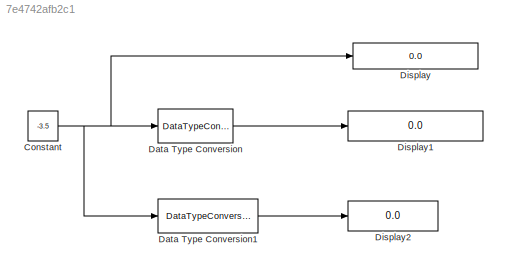
MODEL slx_7e4742afb2c1
KIND model
CONFIG AbsTol = auto
CONFIG EnableMultiTasking = off
CONFIG FixedStep = auto
CONFIG MaxStep = auto
CONFIG MinStep = auto
CONFIG RelTol = 1e-3
CONFIG SampleTimeConstraint = Unconstrained
CONFIG Solver = VariableStepAuto
CONFIG SolverName = VariableStepAuto
CONFIG StartTime = 0.0
CONFIG StopTime = 10.0
BLOCK [Constant] Constant
  AttributesFormatString = %<OutDataTypeStr>
  OutDataTypeStr = fixdt(1,8,3, 'DataTypeOverride', 'Off')
  SampleTime = -1
  Value = -3.5
BLOCK [DataTypeConversion] Data Type Conversion
  AttributesFormatString = %<ConvertRealWorld>\n%<OutDataTypeStr>
  OutDataTypeStr = fixdt(1,16,8)
  RndMeth = Floor
  SaturateOnIntegerOverflow = off
BLOCK [DataTypeConversion] Data Type Conversion1
  AttributesFormatString = %<OutDataTypeStr>\n%<ConvertRealWorld>
  ConvertRealWorld = Stored Integer (SI)
  OutDataTypeStr = fixdt(1,16,8)
  RndMeth = Floor
  SaturateOnIntegerOverflow = off
BLOCK [Display] Display
  AttributesFormatString = %<Format>
  Decimation = 1
  Format = binary (Stored Integer)
  Ports = [1]
BLOCK [Display] Display1
  AttributesFormatString = %<Format>
  Decimation = 1
  Format = binary (Stored Integer)
  Ports = [1]
BLOCK [Display] Display2
  AttributesFormatString = %<Format>
  Decimation = 1
  Format = binary (Stored Integer)
  Ports = [1]
NET Constant:1 -> Data Type Conversion1:1, Data Type Conversion:1, Display:1
LINE Data Type Conversion1:1 -> Display2:1
LINE Data Type Conversion:1 -> Display1:1
note: NET lines group one-source signal fan-out (src -> all destinations, sorted); 1:1 wires keep LINE
